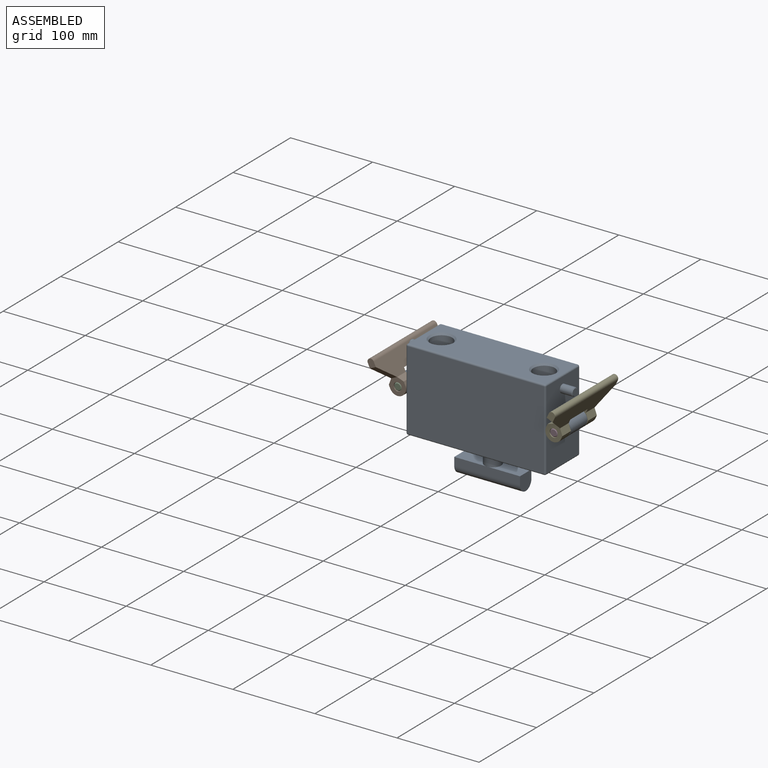
[diagram: assembled view]
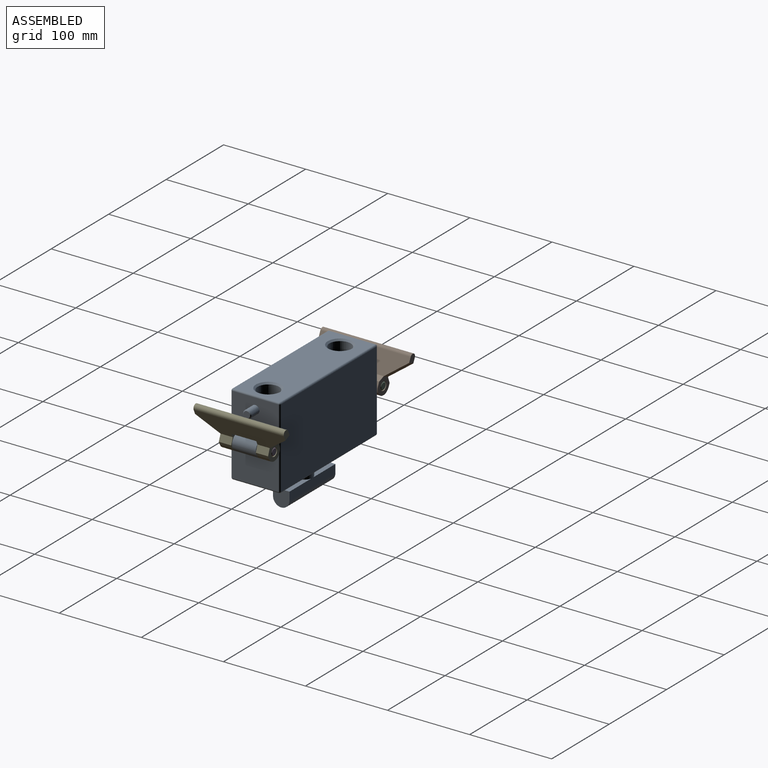
[diagram: assembled view, second angle]
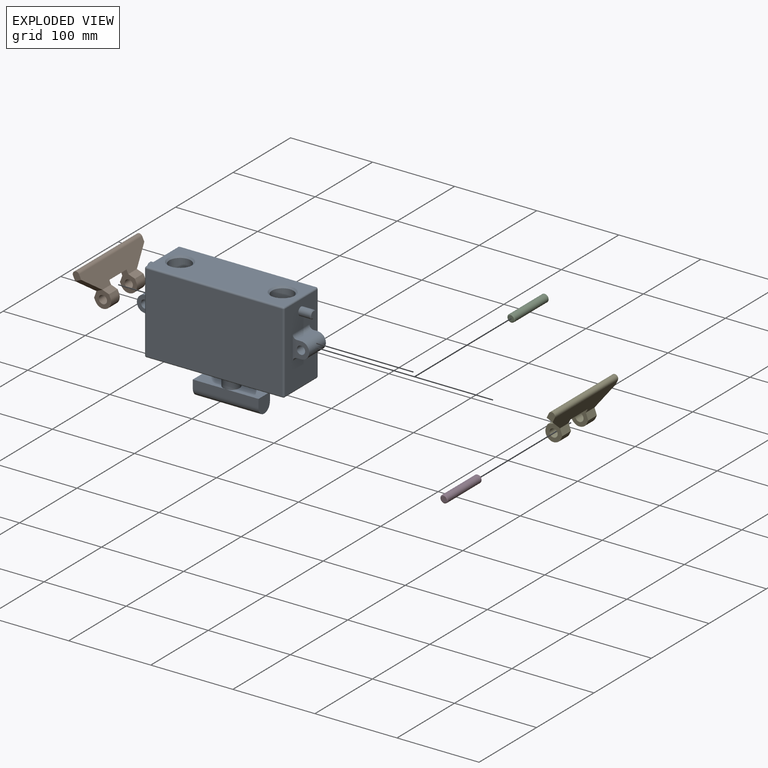
[diagram: exploded view]
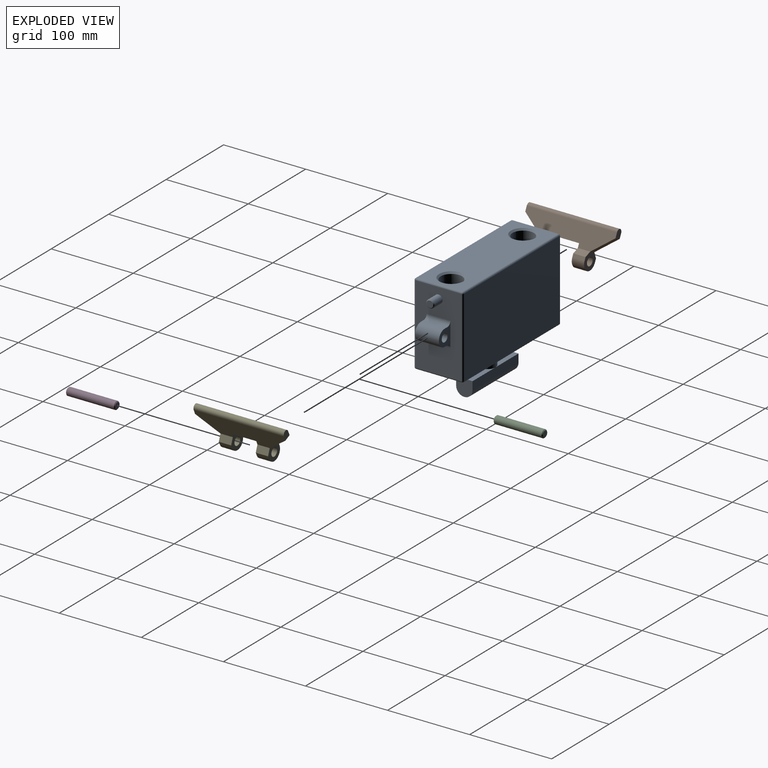
[diagram: exploded view, second angle]
ASSEMBLY  parts=5 mates=2
PART A: 62 faces, bbox 210x60x140 mm
  f0: cylinder r=10mm len=20mm, axis (0,0,1), area 1256.6mm2, adj f4,f55,f60
  f1: plane 30x20mm, normal (0,1,0), area 289.3mm2, adj f5,f7,f11,f12,f13,f31,f34
  f2: plane 30x20mm, normal (0,-1,0), area 289.3mm2, adj f5,f7,f11,f12,f13,f31,f34
  f3: plane 166x56mm, normal (0,0,1), area 7882.3mm2, adj f23,f24,f38,f39,f48,f49
  f4: plane 166x56mm, normal (0,0,-1), area 7568.1mm2, adj f0,f21,f22,f41,f42,f50,f51
  f5: cylinder r=10mm len=29mm, axis (0,-1,0), area 911.1mm2, adj f1,f2,f7,f12
  f6: cylinder r=10mm len=29mm, axis (0,-1,0), area 911.1mm2, adj f8,f9,f17,f18
  f7: plane 29x5mm, normal (0,0,1), area 145mm2, adj f1,f2,f5,f31
  f8: plane 29x4.97mm, normal (0,0,1), area 144.1mm2, adj f6,f17,f18,f32
  f9: plane 29x5.03mm, normal (0,0,-1), area 145.9mm2, adj f6,f17,f18,f33
  f10: plane 96x56mm, normal (-1,0,0), area 4427.5mm2, adj f17,f18,f27,f32,f33,f35,f39,f40
  f11: plane 96x56mm, normal (1,0,0), area 4427.5mm2, adj f1,f2,f25,f31,f34,f43,f48,f51
  f12: plane 29x5mm, normal (0,0,-1), area 145mm2, adj f1,f2,f5,f34
  f13: cylinder r=5mm len=29mm, axis (0,-1,0), area 911.1mm2, adj f1,f2
  f14: cylinder r=5mm len=29mm, axis (0,-1,0), area 911.1mm2, adj f17,f18
  f15: cylinder r=13mm len=96mm, axis (0,0,1), area 7841.4mm2, adj f21,f24
  f16: cylinder r=13mm len=96mm, axis (0,0,1), area 7841.4mm2, adj f22,f23
  f17: plane 30x20mm, normal (0,-1,0), area 289.3mm2, adj f6,f8,f9,f10,f14,f32,f33
  f18: plane 30x20mm, normal (0,1,0), area 289.3mm2, adj f6,f8,f9,f10,f14,f32,f33
  f19: plane 166x96mm, normal (0,-1,0), area 15936mm2, adj f35,f38,f42,f43
  f20: plane 166x96mm, normal (0,1,0), area 15936mm2, adj f40,f49,f50,f54
  f21: cone r=15mm half-angle=45deg, axis (0,0,-1), area 248.8mm2, adj f4,f15
  f22: cone r=15mm half-angle=45deg, axis (0,0,-1), area 248.8mm2, adj f4,f16
  f23: cone r=13mm half-angle=45deg, axis (0,0,1), area 248.8mm2, adj f3,f16
  f24: cone r=13mm half-angle=45deg, axis (0,0,1), area 248.8mm2, adj f3,f15
  f25: cylinder r=5mm len=14mm, axis (-1,0,0), area 439.8mm2, adj f11,f29
  f26: plane 8x8mm, normal (1,0,0), area 50.3mm2, adj f29
  f27: cylinder r=5mm len=14mm, axis (1,0,0), area 439.8mm2, adj f10,f30
  f28: plane 8x8mm, normal (-1,0,0), area 50.3mm2, adj f30
  f29: cone r=4mm half-angle=45deg, axis (-1,0,0), area 40mm2, adj f25,f26
  f30: cone r=4mm half-angle=45deg, axis (1,0,0), area 40mm2, adj f27,f28
  f31: cylinder r=5mm len=29mm, axis (0,1,0), area 227.8mm2, adj f1,f2,f7,f11
  f32: cylinder r=5mm len=29mm, axis (0,1,0), area 228.1mm2, adj f8,f10,f17,f18
  f33: cylinder r=5mm len=29mm, axis (0,1,0), area 227.5mm2, adj f9,f10,f17,f18
  f34: cylinder r=5mm len=29mm, axis (0,1,0), area 227.8mm2, adj f1,f2,f11,f12
  f35: cylinder r=2mm len=96mm, axis (0,0,-1), area 301.6mm2, adj f10,f19,f36,f37
  f36: sphere r=2mm, area 6.3mm2, adj f35,f38,f39
  f37: sphere r=2mm, area 6.3mm2, adj f35,f41,f42
  f38: cylinder r=2mm len=166mm, axis (-1,0,0), area 521.5mm2, adj f3,f19,f36,f44
  f39: cylinder r=2mm len=56mm, axis (0,1,0), area 175.9mm2, adj f3,f10,f36,f45
  f40: cylinder r=2mm len=96mm, axis (0,0,-1), area 301.6mm2, adj f10,f20,f45,f46
  f41: cylinder r=2mm len=56mm, axis (0,-1,0), area 175.9mm2, adj f4,f10,f37,f46
  f42: cylinder r=2mm len=166mm, axis (1,0,0), area 521.5mm2, adj f4,f19,f37,f47
  f43: cylinder r=2mm len=96mm, axis (0,0,1), area 301.6mm2, adj f11,f19,f44,f47
  f44: sphere r=2mm, area 6.3mm2, adj f38,f43,f48
  f45: sphere r=2mm, area 6.3mm2, adj f39,f40,f49
  f46: sphere r=2mm, area 6.3mm2, adj f40,f41,f50
  f47: sphere r=2mm, area 6.3mm2, adj f42,f43,f51
  f48: cylinder r=2mm len=56mm, axis (0,-1,0), area 175.9mm2, adj f3,f11,f44,f52
  f49: cylinder r=2mm len=166mm, axis (-1,0,0), area 521.5mm2, adj f3,f20,f45,f52
  f50: cylinder r=2mm len=166mm, axis (1,0,0), area 521.5mm2, adj f4,f20,f46,f53
  f51: cylinder r=2mm len=56mm, axis (0,1,0), area 175.9mm2, adj f4,f11,f47,f53
  f52: sphere r=2mm, area 6.3mm2, adj f48,f49,f54
  f53: sphere r=2mm, area 6.3mm2, adj f50,f51,f54
  f54: cylinder r=2mm len=96mm, axis (0,0,1), area 301.6mm2, adj f11,f20,f52,f53
  f55: plane 40x20mm, normal (0,0,1), area 642.9mm2, adj f0,f56,f58,f59
  f56: plane 80x10mm, normal (0,-1,0), area 800mm2, adj f55,f57,f59,f60,f61
  f57: plane 20x20mm, normal (-1,0,0), area 357.1mm2, adj f56,f58,f60,f61
  f58: plane 80x10mm, normal (0,1,0), area 800mm2, adj f55,f57,f59,f60,f61
  f59: plane 20x20mm, normal (1,0,0), area 357.1mm2, adj f55,f56,f58,f61
  f60: plane 40x20mm, normal (0,0,1), area 642.9mm2, adj f0,f56,f57,f58
  f61: cylinder r=10mm len=80mm, axis (1,0,0), area 2513.3mm2, adj f56,f57,f58,f59
PART B: 24 faces, bbox 110x50x20 mm
  f0: plane 15x4mm, normal (0,0,-1), area 60mm2, adj f3,f10,f18,f20
  f1: plane 15x4mm, normal (0,0,-1), area 60mm2, adj f9,f11,f17,f19
  f2: plane 30x8mm, normal (0,-1,0), area 240mm2, adj f3,f9,f13,f14
  f3: plane 25x20mm, normal (1,0,0), area 282.5mm2, adj f0,f2,f12,f13,f14,f16,f18,f20
  f4: plane 25x20mm, normal (-0.62,-0.78,0), area 256.1mm2, adj f7,f10,f13,f14
  f5: plane 25x20mm, normal (0.62,-0.78,0), area 256.1mm2, adj f6,f11,f13,f14
  f6: plane 10x8mm, normal (1,0,0), area 73.1mm2, adj f5,f13,f14,f23
  f7: plane 10x8mm, normal (-1,0,0), area 73.1mm2, adj f4,f13,f14,f23
  f8: plane 15x4mm, normal (0,0,1), area 60mm2, adj f9,f11,f17,f22
  f9: plane 25x20mm, normal (-1,0,0), area 282.5mm2, adj f1,f2,f8,f13,f14,f15,f17,f19
  f10: plane 20x20mm, normal (-1,0,0), area 242.5mm2, adj f0,f4,f12,f16,f18,f20,f21
  f11: plane 20x20mm, normal (1,0,0), area 242.5mm2, adj f1,f5,f8,f15,f17,f19,f22
  f12: plane 15x4mm, normal (0,0,1), area 60mm2, adj f3,f10,f18,f21
  f13: plane 110x26mm, normal (0,0,1), area 2210mm2, adj f2,f3,f4,f5,f6,f7,f9,f21
  f14: plane 110x26mm, normal (0,0,-1), area 2210mm2, adj f2,f3,f4,f5,f6,f7,f9,f19
  f15: cylinder r=5mm len=15mm, axis (1,0,0), area 471.2mm2, adj f9,f11
  f16: cylinder r=5mm len=15mm, axis (1,0,0), area 471.2mm2, adj f3,f10
  f17: cylinder r=10mm len=20mm, axis (-1,0,0), area 471.2mm2, adj f1,f8,f9,f11
  f18: cylinder r=10mm len=20mm, axis (-1,0,0), area 471.2mm2, adj f0,f3,f10,f12
  f19: plane 15x6mm, normal (0,0.71,-0.71), area 127.3mm2, adj f1,f9,f11,f14
  f20: plane 15x6mm, normal (0,0.71,-0.71), area 127.3mm2, adj f0,f3,f10,f14
  f21: plane 15x6mm, normal (0,0.71,0.71), area 127.3mm2, adj f3,f10,f12,f13
  f22: plane 15x6mm, normal (0,0.71,0.71), area 127.3mm2, adj f8,f9,f11,f13
  f23: cylinder r=4mm len=110mm, axis (1,0,0), area 1382.3mm2, adj f6,f7,f13,f14
PART C: 5 faces, bbox 9.5x60x9.5 mm
  f0: cylinder r=4.75mm len=58mm, axis (0,1,0), area 1731mm2, adj f3,f4
  f1: plane 7.5x7.5mm, normal (0,-1,0), area 44.2mm2, adj f4
  f2: plane 7.5x7.5mm, normal (0,1,0), area 44.2mm2, adj f3
  f3: cone r=4.75mm half-angle=45deg, axis (0,-1,0), area 37.8mm2, adj f0,f2
  f4: cone r=3.75mm half-angle=45deg, axis (0,1,0), area 37.8mm2, adj f0,f1
PART D: same geometry as C
PART E: same geometry as B
PLACE A t=(190.44,-186.27,64.14)mm
PLACE B rot(axis=(0.47,0.47,0.74),106.8deg) t=(-388.25,-92.56,53.43)mm
PLACE C rot(axis=(0,-1,0),25deg) t=(-240.37,-126.27,47.27)mm
PLACE D rot(axis=(0,1,0),25deg) t=(-67.35,-126.27,-55.38)mm
PLACE E rot(axis=(0.47,-0.47,-0.74),106.8deg) t=(-139.56,-219.99,53.4)mm
MATE fastened C.f0 <-> B.f15  axis (0,-1,0) through (-358.9,-186.27,14.16)mm
MATE fastened D.f0 <-> E.f15  axis (0,1,0) through (-168.9,-126.27,14.14)mm
